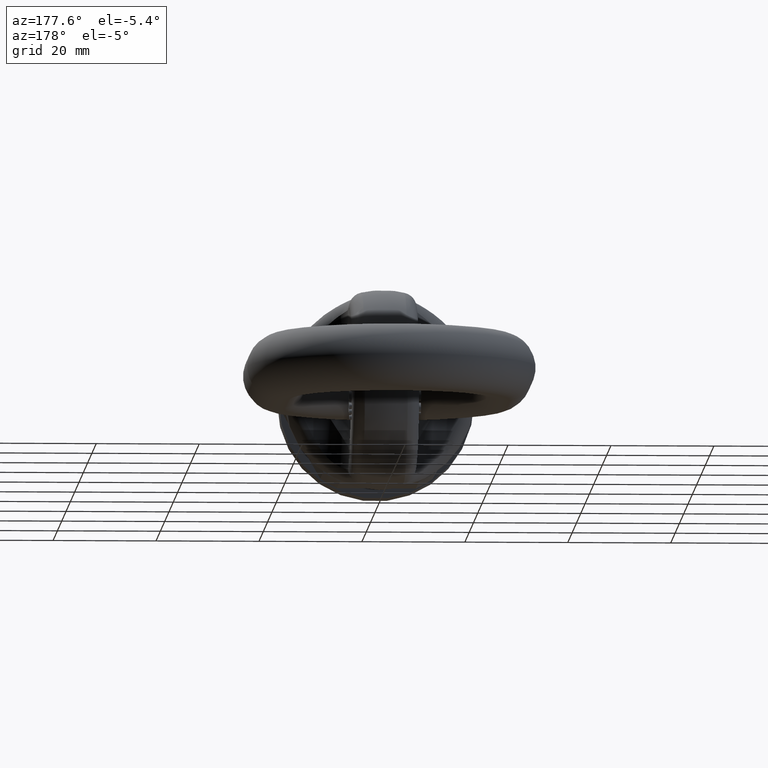
[diagram: clean part render]
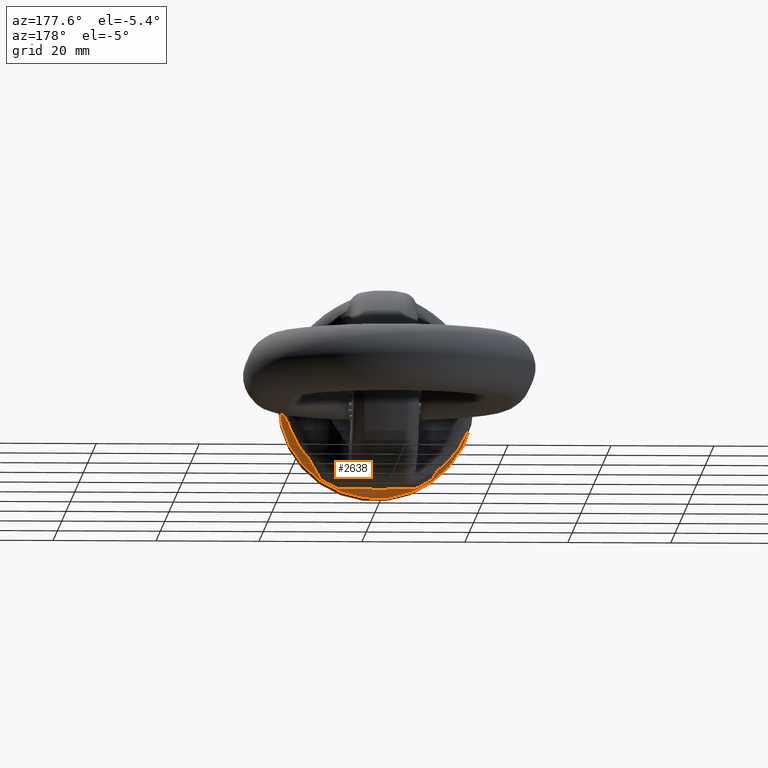
[diagram: same view with one face highlighted and labeled with its STEP entity id]
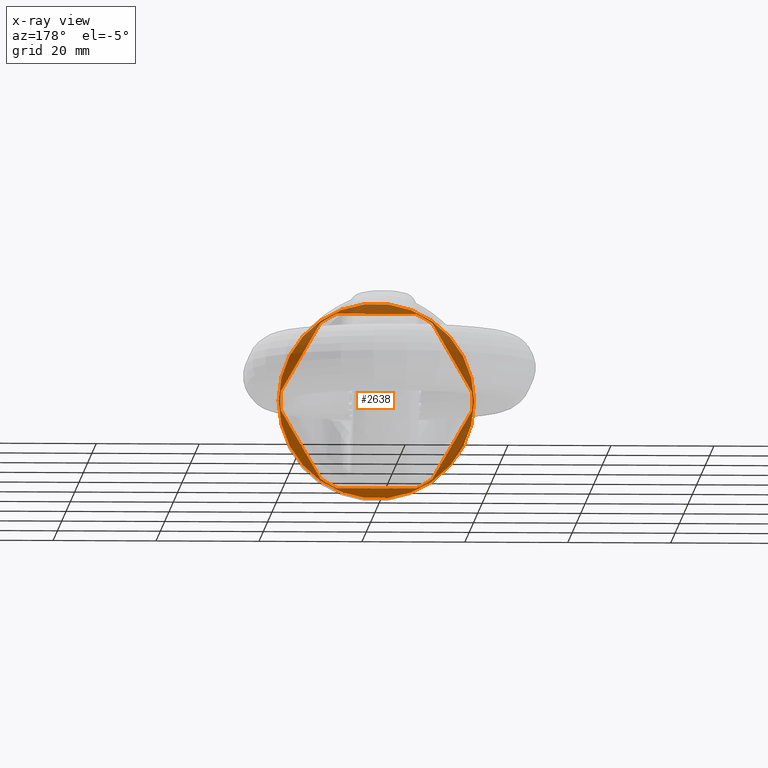
[diagram: x-ray of the same camera — body ghosted, the highlighted face saturated]
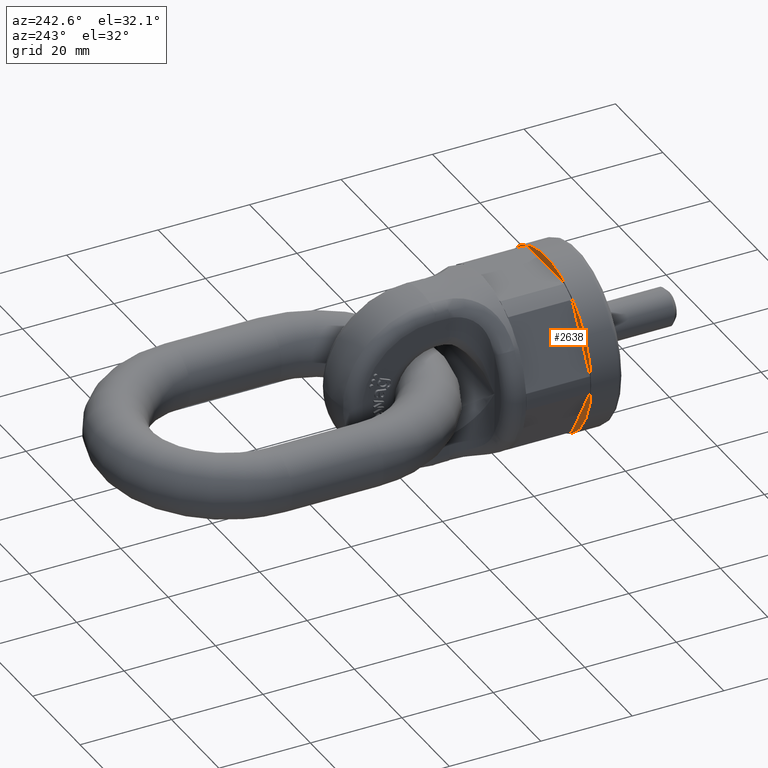
[diagram: same view with one face highlighted and labeled with its STEP entity id]
A machine part, auxiliary view. The second image highlights one B-rep face of the part: STEP entity #2638.
The next image is the same camera in x-ray: the body ghosted, the highlighted face saturated — about 64% of this face is hidden behind the body in this view.
A second angle (auxiliary view) of the same face is appended — the face is thin or edge-on in the first view.
In plain terms, the highlighted planar face has unit normal (-0, 1, 0).
Its self-contained STEP definition (entity closure, byte-faithful):
#2033=LINE('',#6569,#2289);
#2034=LINE('',#6574,#2290);
#2035=LINE('',#6578,#2291);
#2036=LINE('',#6582,#2292);
#2037=LINE('',#6586,#2293);
#2038=LINE('',#6590,#2294);
#2289=VECTOR('',#5811,1.);
#2290=VECTOR('',#5814,1.);
#2291=VECTOR('',#5817,1.);
#2292=VECTOR('',#5820,1.);
#2293=VECTOR('',#5823,1.);
#2294=VECTOR('',#5826,1.);
#2638=ADVANCED_FACE('',(#2987,#2988),#2881,.T.);
#2881=PLANE('',#5606);
#2987=FACE_BOUND('',#3059,.T.);
#2988=FACE_BOUND('',#3060,.T.);
#3059=EDGE_LOOP('',(#3345));
#3060=EDGE_LOOP('',(#3346,#3347,#3348,#3349,#3350,#3351,#3352,#3353,#3354,
#3355,#3356,#3357));
#3345=ORIENTED_EDGE('',*,*,#4935,.F.);
#3346=ORIENTED_EDGE('',*,*,#4936,.F.);
#3347=ORIENTED_EDGE('',*,*,#4937,.T.);
#3348=ORIENTED_EDGE('',*,*,#4938,.F.);
#3349=ORIENTED_EDGE('',*,*,#4939,.T.);
#3350=ORIENTED_EDGE('',*,*,#4940,.F.);
#3351=ORIENTED_EDGE('',*,*,#4941,.T.);
#3352=ORIENTED_EDGE('',*,*,#4942,.F.);
#3353=ORIENTED_EDGE('',*,*,#4943,.T.);
#3354=ORIENTED_EDGE('',*,*,#4944,.F.);
#3355=ORIENTED_EDGE('',*,*,#4945,.T.);
#3356=ORIENTED_EDGE('',*,*,#4946,.F.);
#3357=ORIENTED_EDGE('',*,*,#4947,.T.);
#4537=VERTEX_POINT('',#6568);
#4538=VERTEX_POINT('',#6570);
#4539=VERTEX_POINT('',#6571);
#4540=VERTEX_POINT('',#6573);
#4541=VERTEX_POINT('',#6575);
#4542=VERTEX_POINT('',#6577);
#4543=VERTEX_POINT('',#6579);
#4544=VERTEX_POINT('',#6581);
#4545=VERTEX_POINT('',#6583);
#4546=VERTEX_POINT('',#6585);
#4547=VERTEX_POINT('',#6587);
#4548=VERTEX_POINT('',#6589);
#4549=VERTEX_POINT('',#6591);
#4935=EDGE_CURVE('',#4537,#4537,#5531,.T.);
#4936=EDGE_CURVE('',#4538,#4539,#2033,.T.);
#4937=EDGE_CURVE('',#4538,#4540,#5532,.T.);
#4938=EDGE_CURVE('',#4541,#4540,#2034,.T.);
#4939=EDGE_CURVE('',#4541,#4542,#5533,.T.);
#4940=EDGE_CURVE('',#4543,#4542,#2035,.T.);
#4941=EDGE_CURVE('',#4543,#4544,#5534,.T.);
#4942=EDGE_CURVE('',#4545,#4544,#2036,.T.);
#4943=EDGE_CURVE('',#4545,#4546,#5535,.T.);
#4944=EDGE_CURVE('',#4547,#4546,#2037,.T.);
#4945=EDGE_CURVE('',#4547,#4548,#5536,.T.);
#4946=EDGE_CURVE('',#4549,#4548,#2038,.T.);
#4947=EDGE_CURVE('',#4549,#4539,#5537,.T.);
#5531=CIRCLE('',#5599,19.);
#5532=CIRCLE('',#5600,18.6484136948227);
#5533=CIRCLE('',#5601,18.6484136948227);
#5534=CIRCLE('',#5602,18.6484136948227);
#5535=CIRCLE('',#5603,18.6484136948227);
#5536=CIRCLE('',#5604,18.6484136948227);
#5537=CIRCLE('',#5605,18.6484136948227);
#5599=AXIS2_PLACEMENT_3D('',#6567,#5809,#5810);
#5600=AXIS2_PLACEMENT_3D('',#6572,#5812,#5813);
#5601=AXIS2_PLACEMENT_3D('',#6576,#5815,#5816);
#5602=AXIS2_PLACEMENT_3D('',#6580,#5818,#5819);
#5603=AXIS2_PLACEMENT_3D('',#6584,#5821,#5822);
#5604=AXIS2_PLACEMENT_3D('',#6588,#5824,#5825);
#5605=AXIS2_PLACEMENT_3D('',#6592,#5827,#5828);
#5606=AXIS2_PLACEMENT_3D('',#6593,#5829,#5830);
#5809=DIRECTION('',(3.82702124733548E-17,-1.,0.));
#5810=DIRECTION('',(1.,4.56506177888633E-17,0.));
#5811=DIRECTION('',(0.499999999999999,1.91351062366774E-17,-0.866025403784439));
#5812=DIRECTION('',(3.82702124733548E-17,-1.,0.));
#5813=DIRECTION('',(-1.,-4.65112878866048E-17,0.));
#5814=DIRECTION('',(1.,3.82702124733548E-17,0.));
#5815=DIRECTION('',(3.82702124733548E-17,-1.,0.));
#5816=DIRECTION('',(-1.,-4.65112878866048E-17,0.));
#5817=DIRECTION('',(0.499999999999999,1.91351062366774E-17,0.866025403784439));
#5818=DIRECTION('',(3.82702124733548E-17,-1.,0.));
#5819=DIRECTION('',(-1.,-4.65112878866048E-17,0.));
#5820=DIRECTION('',(-0.499999999999999,-1.91351062366774E-17,0.866025403784439));
#5821=DIRECTION('',(3.82702124733548E-17,-1.,0.));
#5822=DIRECTION('',(-1.,-4.65112878866048E-17,0.));
#5823=DIRECTION('',(-1.,-3.82702124733548E-17,0.));
#5824=DIRECTION('',(3.82702124733548E-17,-1.,0.));
#5825=DIRECTION('',(-1.,-4.65112878866048E-17,0.));
#5826=DIRECTION('',(-0.499999999999999,-1.91351062366774E-17,-0.866025403784439));
#5827=DIRECTION('',(3.82702124733548E-17,-1.,0.));
#5828=DIRECTION('',(-1.,-4.65112878866048E-17,0.));
#5829=DIRECTION('',(-3.82702124733548E-17,1.,0.));
#5830=DIRECTION('',(-1.,-3.81639164714898E-17,0.));
#6567=CARTESIAN_POINT('',(-2.67891487313483E-16,7.,0.));
#6568=CARTESIAN_POINT('',(19.,7.,0.));
#6569=CARTESIAN_POINT('',(19.4724318643354,7.,0.272758664047817));
#6570=CARTESIAN_POINT('',(10.8895695744386,7.,15.1387122245161));
#6571=CARTESIAN_POINT('',(18.5552941542323,7.,1.86128777548383));
#6572=CARTESIAN_POINT('',(-1.71450551880629E-16,7.,0.));
#6573=CARTESIAN_POINT('',(7.66572457979367,7.,17.));
#6574=CARTESIAN_POINT('',(19.,7.,17.));
#6575=CARTESIAN_POINT('',(-7.66572457979367,7.,17.));
#6576=CARTESIAN_POINT('',(-1.71450551880629E-16,7.,0.));
#6577=CARTESIAN_POINT('',(-10.8895695744386,7.,15.1387122245161));
#6578=CARTESIAN_POINT('',(-9.97243186433546,7.,16.7272413359521));
#6579=CARTESIAN_POINT('',(-18.5552941542323,7.,1.86128777548383));
#6580=CARTESIAN_POINT('',(-1.71450551880629E-16,7.,0.));
#6581=CARTESIAN_POINT('',(-18.5552941542323,7.,-1.86128777548383));
#6582=CARTESIAN_POINT('',(-9.97243186433546,7.,-16.7272413359521));
#6583=CARTESIAN_POINT('',(-10.8895695744386,7.,-15.1387122245161));
#6584=CARTESIAN_POINT('',(-1.71450551880629E-16,7.,0.));
#6585=CARTESIAN_POINT('',(-7.66572457979366,7.,-17.));
#6586=CARTESIAN_POINT('',(19.,7.,-17.));
#6587=CARTESIAN_POINT('',(7.66572457979367,7.,-17.));
#6588=CARTESIAN_POINT('',(-1.71450551880629E-16,7.,0.));
#6589=CARTESIAN_POINT('',(10.8895695744386,7.,-15.1387122245161));
#6590=CARTESIAN_POINT('',(19.4724318643354,7.,-0.272758664047818));
#6591=CARTESIAN_POINT('',(18.5552941542323,7.,-1.86128777548382));
#6592=CARTESIAN_POINT('',(-1.71450551880629E-16,7.,0.));
#6593=CARTESIAN_POINT('',(19.,7.,0.));